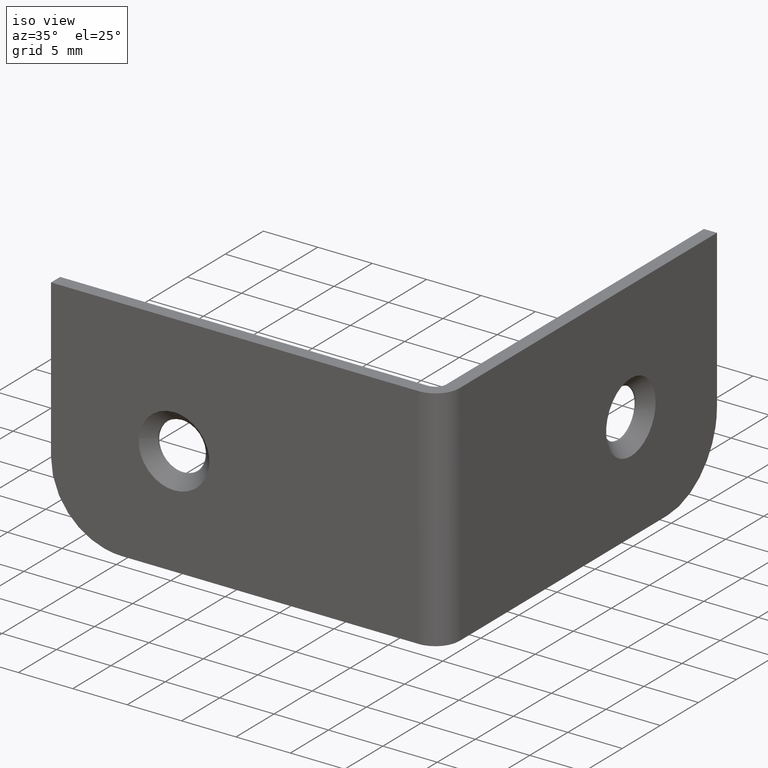
[diagram: clean part render]
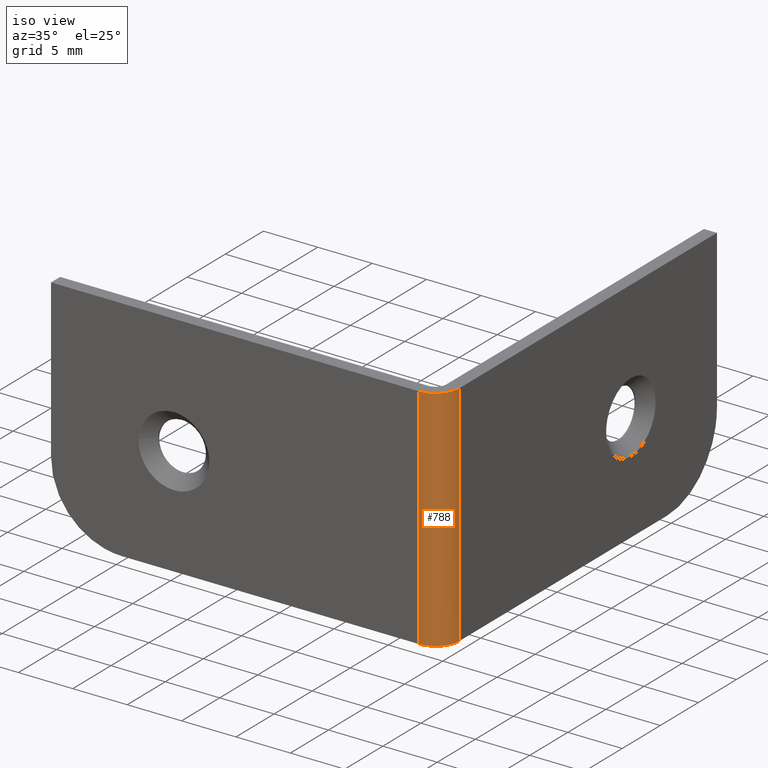
[diagram: same view with one face highlighted and labeled with its STEP entity id]
A machine part, iso view. The second image highlights one B-rep face of the part: STEP entity #788.
In plain terms, the highlighted face is a freeform B-spline surface patch.
Its self-contained STEP definition (entity closure, byte-faithful):
#728=CARTESIAN_POINT('',(-2.219198378096421,0.000083769258824,21.525000000000009));
#729=CARTESIAN_POINT('',(-2.219198378096421,0.000083769258824,-0.538125000000001));
#730=CARTESIAN_POINT('',(0.139922952425854,-0.020503970695001,21.525000000000002));
#731=CARTESIAN_POINT('',(0.139922952425854,-0.020503970695001,-0.538125000000001));
#732=CARTESIAN_POINT('',(-0.004103443471893,2.334306786976685,21.525000000000009));
#733=CARTESIAN_POINT('',(-0.004103443471893,2.334306786976685,-0.538125000000001));
#741=(BOUNDED_SURFACE()B_SPLINE_SURFACE(1,2,((#728,#730,#732),(#729,#731,#733)),.UNSPECIFIED.,.F.,.F.,.U.)B_SPLINE_SURFACE_WITH_KNOTS((2,2),(3,3),(0.0,22.063125000000010),(0.0,3.826348899656213),.UNSPECIFIED.)GEOMETRIC_REPRESENTATION_ITEM()RATIONAL_B_SPLINE_SURFACE(((1.0,0.681998360062499,1.0),(1.0,0.681998360062499,1.0)))REPRESENTATION_ITEM('')SURFACE());
#742=CARTESIAN_POINT('',(-2.200000000000000,0.0,21.0));
#743=VERTEX_POINT('',#742);
#744=CARTESIAN_POINT('',(0.0,2.200000000000000,21.0));
#745=VERTEX_POINT('',#744);
#746=CARTESIAN_POINT('',(-2.200000000000000,0.0,21.0));
#747=CARTESIAN_POINT('',(0.0,0.0,21.000000000000004));
#748=CARTESIAN_POINT('',(0.0,2.200000000000000,21.0));
#756=(BOUNDED_CURVE()B_SPLINE_CURVE(2,(#746,#747,#748),.UNSPECIFIED.,.F.,.U.)CURVE()GEOMETRIC_REPRESENTATION_ITEM()QUASI_UNIFORM_CURVE()RATIONAL_B_SPLINE_CURVE((1.0,0.707106781186548,1.0))REPRESENTATION_ITEM(''));
#757=EDGE_CURVE('',#743,#745,#756,.T.);
#758=ORIENTED_EDGE('',*,*,#757,.F.);
#759=CARTESIAN_POINT('',(-2.200000000000000,0.0,0.0));
#760=VERTEX_POINT('',#759);
#761=CARTESIAN_POINT('',(-2.200000000000000,0.0,0.0));
#762=CARTESIAN_POINT('',(-2.200000000000000,0.0,21.0));
#763=QUASI_UNIFORM_CURVE('',1,(#761,#762),.UNSPECIFIED.,.F.,.U.);
#764=EDGE_CURVE('',#760,#743,#763,.T.);
#765=ORIENTED_EDGE('',*,*,#764,.F.);
#766=CARTESIAN_POINT('',(0.0,2.200000000000000,0.0));
#767=VERTEX_POINT('',#766);
#768=CARTESIAN_POINT('',(0.0,2.200000000000000,0.0));
#769=CARTESIAN_POINT('',(0.0,0.0,0.0));
#770=CARTESIAN_POINT('',(-2.200000000000000,0.0,0.0));
#778=(BOUNDED_CURVE()B_SPLINE_CURVE(2,(#768,#769,#770),.UNSPECIFIED.,.F.,.U.)CURVE()GEOMETRIC_REPRESENTATION_ITEM()QUASI_UNIFORM_CURVE()RATIONAL_B_SPLINE_CURVE((1.0,0.707106781186548,1.0))REPRESENTATION_ITEM(''));
#779=EDGE_CURVE('',#767,#760,#778,.T.);
#780=ORIENTED_EDGE('',*,*,#779,.F.);
#781=CARTESIAN_POINT('',(0.0,2.200000000000000,21.0));
#782=CARTESIAN_POINT('',(0.0,2.200000000000000,0.0));
#783=QUASI_UNIFORM_CURVE('',1,(#781,#782),.UNSPECIFIED.,.F.,.U.);
#784=EDGE_CURVE('',#745,#767,#783,.T.);
#785=ORIENTED_EDGE('',*,*,#784,.F.);
#786=EDGE_LOOP('',(#758,#765,#780,#785));
#787=FACE_OUTER_BOUND('',#786,.T.);
#788=ADVANCED_FACE('',(#787),#741,.T.);